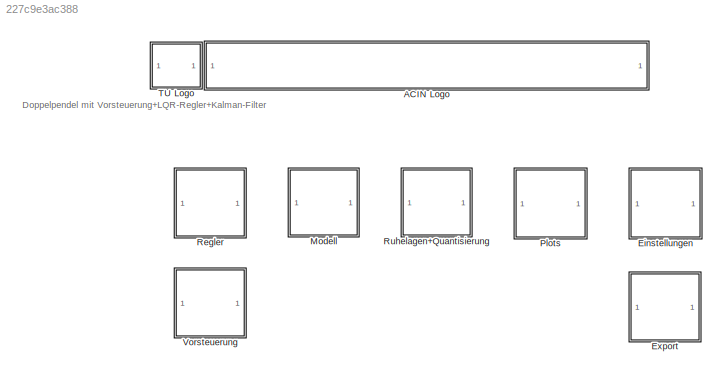
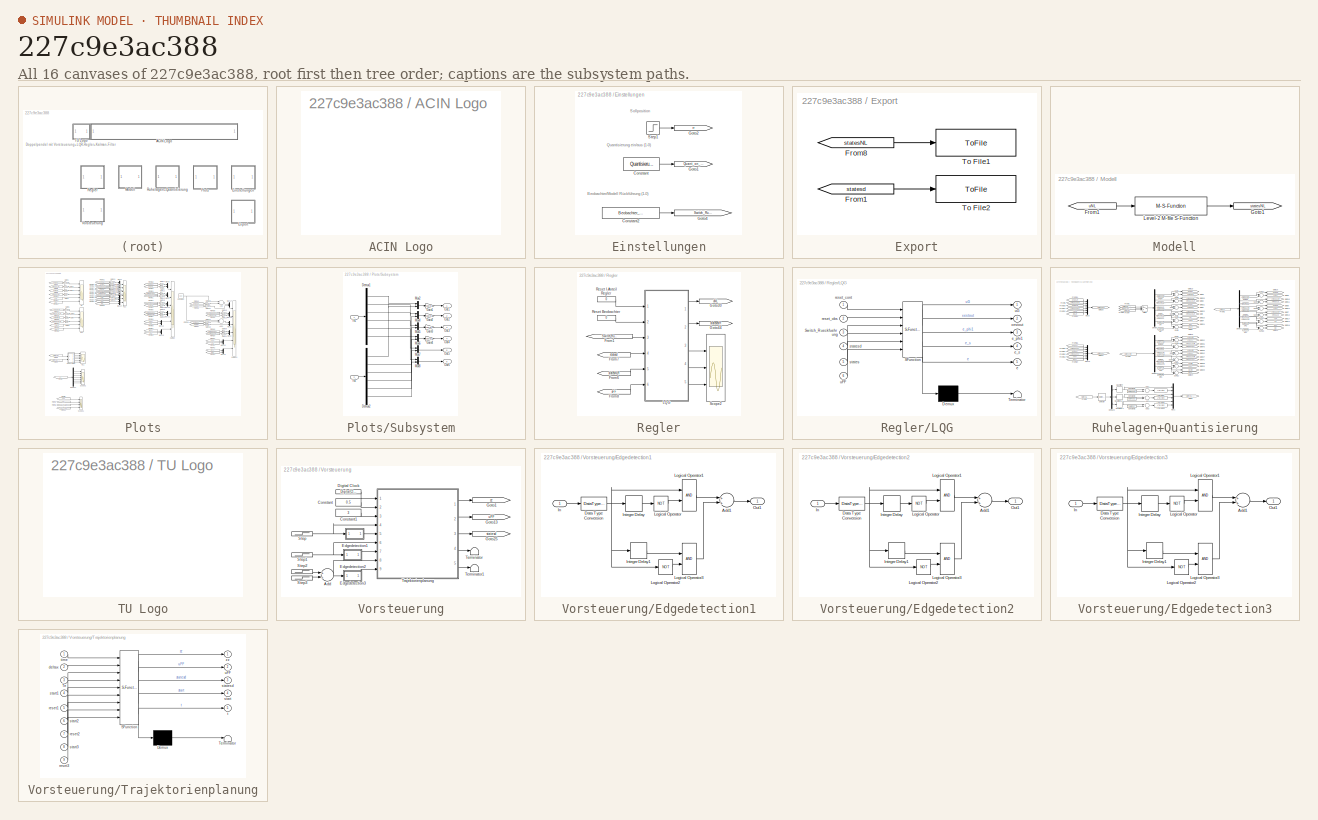
[diagram: thumbnail index - all 16 canvases of the model, root first then tree order]
MODEL slx_227c9e3ac388
KIND model
CONFIG AbsTol = auto
CONFIG EnableMultiTasking = on
CONFIG FixedStep = auto
CONFIG MaxStep = auto
CONFIG MinStep = auto
CONFIG RelTol = auto
CONFIG SampleTimeConstraint = Unconstrained
CONFIG Solver = ode45
CONFIG SolverName = ode45
CONFIG StartTime = 0.0
CONFIG StopTime = 10
BLOCK [SubSystem] ACIN Logo
  Ports = []
  RequestExecContextInheritance = off
  UserDataPersistent = on
  Variant = off
BLOCK [SubSystem] Einstellungen
  Ports = []
  RequestExecContextInheritance = off
  Variant = off
BLOCK [Constant] Einstellungen/Constant
  Value = Quantisierung
BLOCK [Constant] Einstellungen/Constant2
  Value = Beobachter_Rueckfuehrung
BLOCK [Goto] Einstellungen/Goto1
  GotoTag = Quant_on_off
  TagVisibility = global
BLOCK [Goto] Einstellungen/Goto2
  GotoTag = rr
  TagVisibility = global
BLOCK [Goto] Einstellungen/Goto4
  GotoTag = Switch_Rueckfuehrung
  TagVisibility = global
BLOCK [Step] Einstellungen/Step1
  After = 0.1
  SampleTime = parLQR.Ta
BLOCK [SubSystem] Export
  Ports = []
  RequestExecContextInheritance = off
  Variant = off
BLOCK [From] Export/From1
  CloseFcn = tagdialog Close
  GotoTag = statesd
  TagVisibility = global
BLOCK [From] Export/From8
  CloseFcn = tagdialog Close
  GotoTag = statesNL
  TagVisibility = global
BLOCK [ToFile] Export/To File1
  Filename = statesNL
  MatrixName = data
  Ports = [1]
  SampleTime = parDP.Ta
BLOCK [ToFile] Export/To File2
  Filename = statesd
  MatrixName = data
  Ports = [1]
  SampleTime = parDP.Ta
BLOCK [SubSystem] Modell
  Ports = []
  RequestExecContextInheritance = off
  Variant = off
BLOCK [From] Modell/From1
  CloseFcn = tagdialog Close
  GotoTag = uNL
  TagVisibility = global
BLOCK [Goto] Modell/Goto1
  GotoTag = statesNL
  TagVisibility = global
BLOCK [M-S-Function] Modell/Level-2 M-file S-Function
  FunctionName = Doppelpendel_NL_S_m
  Parameters = parDP.phi10,parDP.omega10,parDP.phi20,parDP.omega20,parDP.s0,parDP.w0,parDP.l1,parDP.l2,parDP.a1,parDP.a2,parDP.m1,parDP.m2,parDP.J1,parDP.J2,parDP.d1,parDP.d2
  Ports = [1, 1]
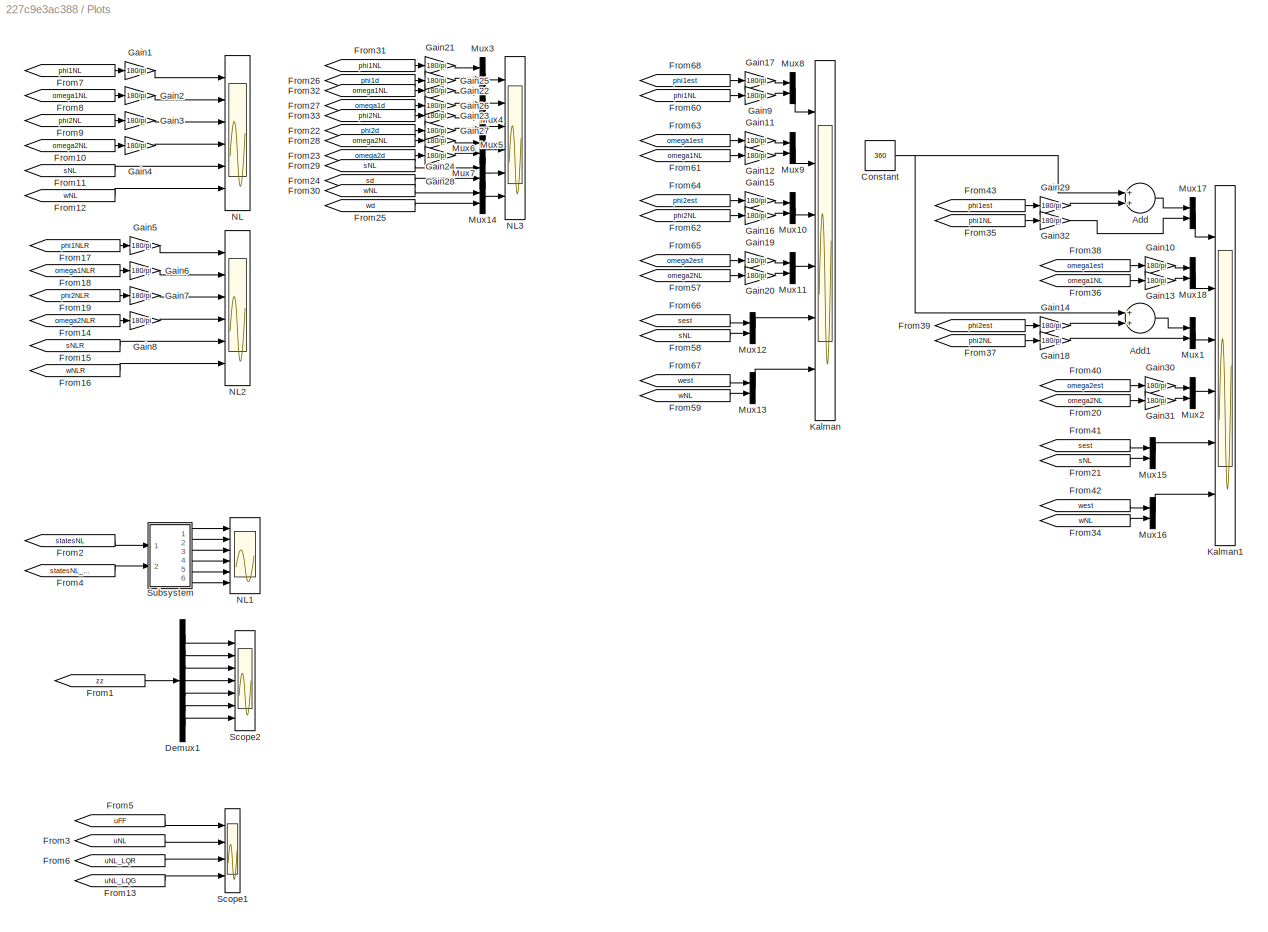
BLOCK [SubSystem] Plots
  Ports = []
  RequestExecContextInheritance = off
  Variant = off
BLOCK [Sum] Plots/Add
  InputSameDT = off
  OutDataTypeStr = Inherit: Inherit via internal rule
  Ports = [2, 1]
  SaturateOnIntegerOverflow = off
BLOCK [Sum] Plots/Add1
  InputSameDT = off
  OutDataTypeStr = Inherit: Inherit via internal rule
  Ports = [2, 1]
  SaturateOnIntegerOverflow = off
BLOCK [Constant] Plots/Constant
  Value = 360
BLOCK [Demux] Plots/Demux1
  DisplayOption = bar
  Outputs = 7
  Ports = [1, 7]
BLOCK [From] Plots/From1
  CloseFcn = tagdialog Close
  GotoTag = zz
  TagVisibility = global
BLOCK [From] Plots/From10
  CloseFcn = tagdialog Close
  GotoTag = omega2NL
  TagVisibility = global
BLOCK [From] Plots/From11
  CloseFcn = tagdialog Close
  GotoTag = sNL
  TagVisibility = global
BLOCK [From] Plots/From12
  CloseFcn = tagdialog Close
  GotoTag = wNL
  TagVisibility = global
BLOCK [From] Plots/From13
  CloseFcn = tagdialog Close
  GotoTag = uNL_LQG
BLOCK [From] Plots/From14
  CloseFcn = tagdialog Close
  GotoTag = omega2NLR
  TagVisibility = global
BLOCK [From] Plots/From15
  CloseFcn = tagdialog Close
  GotoTag = sNLR
  TagVisibility = global
BLOCK [From] Plots/From16
  CloseFcn = tagdialog Close
  GotoTag = wNLR
  TagVisibility = global
BLOCK [From] Plots/From17
  CloseFcn = tagdialog Close
  GotoTag = phi1NLR
  TagVisibility = global
BLOCK [From] Plots/From18
  CloseFcn = tagdialog Close
  GotoTag = omega1NLR
  TagVisibility = global
BLOCK [From] Plots/From19
  CloseFcn = tagdialog Close
  GotoTag = phi2NLR
  TagVisibility = global
BLOCK [From] Plots/From2
  CloseFcn = tagdialog Close
  GotoTag = statesNL
  TagVisibility = global
BLOCK [From] Plots/From20
  CloseFcn = tagdialog Close
  GotoTag = omega2NL
  TagVisibility = global
BLOCK [From] Plots/From21
  CloseFcn = tagdialog Close
  GotoTag = sNL
  TagVisibility = global
BLOCK [From] Plots/From22
  CloseFcn = tagdialog Close
  GotoTag = phi2d
  TagVisibility = global
BLOCK [From] Plots/From23
  CloseFcn = tagdialog Close
  GotoTag = omega2d
  TagVisibility = global
BLOCK [From] Plots/From24
  CloseFcn = tagdialog Close
  GotoTag = sd
  TagVisibility = global
BLOCK [From] Plots/From25
  CloseFcn = tagdialog Close
  GotoTag = wd
  TagVisibility = global
BLOCK [From] Plots/From26
  CloseFcn = tagdialog Close
  GotoTag = phi1d
  TagVisibility = global
BLOCK [From] Plots/From27
  CloseFcn = tagdialog Close
  GotoTag = omega1d
  TagVisibility = global
BLOCK [From] Plots/From28
  CloseFcn = tagdialog Close
  GotoTag = omega2NL
  TagVisibility = global
BLOCK [From] Plots/From29
  CloseFcn = tagdialog Close
  GotoTag = sNL
  TagVisibility = global
BLOCK [From] Plots/From3
  CloseFcn = tagdialog Close
  GotoTag = uNL
  TagVisibility = global
BLOCK [From] Plots/From30
  CloseFcn = tagdialog Close
  GotoTag = wNL
  TagVisibility = global
BLOCK [From] Plots/From31
  CloseFcn = tagdialog Close
  GotoTag = phi1NL
  TagVisibility = global
BLOCK [From] Plots/From32
  CloseFcn = tagdialog Close
  GotoTag = omega1NL
  TagVisibility = global
BLOCK [From] Plots/From33
  CloseFcn = tagdialog Close
  GotoTag = phi2NL
  TagVisibility = global
BLOCK [From] Plots/From34
  CloseFcn = tagdialog Close
  GotoTag = wNL
  TagVisibility = global
BLOCK [From] Plots/From35
  CloseFcn = tagdialog Close
  GotoTag = phi1NL
  TagVisibility = global
BLOCK [From] Plots/From36
  CloseFcn = tagdialog Close
  GotoTag = omega1NL
  TagVisibility = global
BLOCK [From] Plots/From37
  CloseFcn = tagdialog Close
  GotoTag = phi2NL
  TagVisibility = global
BLOCK [From] Plots/From38
  CloseFcn = tagdialog Close
  GotoTag = omega1est
  TagVisibility = global
BLOCK [From] Plots/From39
  CloseFcn = tagdialog Close
  GotoTag = phi2est
  TagVisibility = global
BLOCK [From] Plots/From4
  CloseFcn = tagdialog Close
  GotoTag = statesNL_quant
  TagVisibility = global
BLOCK [From] Plots/From40
  CloseFcn = tagdialog Close
  GotoTag = omega2est
  TagVisibility = global
BLOCK [From] Plots/From41
  CloseFcn = tagdialog Close
  GotoTag = sest
  TagVisibility = global
BLOCK [From] Plots/From42
  CloseFcn = tagdialog Close
  GotoTag = west
  TagVisibility = global
BLOCK [From] Plots/From43
  CloseFcn = tagdialog Close
  GotoTag = phi1est
  TagVisibility = global
BLOCK [From] Plots/From5
  CloseFcn = tagdialog Close
  GotoTag = uFF
  TagVisibility = global
BLOCK [From] Plots/From57
  CloseFcn = tagdialog Close
  GotoTag = omega2NL
  TagVisibility = global
BLOCK [From] Plots/From58
  CloseFcn = tagdialog Close
  GotoTag = sNL
  TagVisibility = global
BLOCK [From] Plots/From59
  CloseFcn = tagdialog Close
  GotoTag = wNL
  TagVisibility = global
BLOCK [From] Plots/From6
  CloseFcn = tagdialog Close
  GotoTag = uNL_LQR
BLOCK [From] Plots/From60
  CloseFcn = tagdialog Close
  GotoTag = phi1NL
  TagVisibility = global
BLOCK [From] Plots/From61
  CloseFcn = tagdialog Close
  GotoTag = omega1NL
  TagVisibility = global
BLOCK [From] Plots/From62
  CloseFcn = tagdialog Close
  GotoTag = phi2NL
  TagVisibility = global
BLOCK [From] Plots/From63
  CloseFcn = tagdialog Close
  GotoTag = omega1est
  TagVisibility = global
BLOCK [From] Plots/From64
  CloseFcn = tagdialog Close
  GotoTag = phi2est
  TagVisibility = global
BLOCK [From] Plots/From65
  CloseFcn = tagdialog Close
  GotoTag = omega2est
  TagVisibility = global
BLOCK [From] Plots/From66
  CloseFcn = tagdialog Close
  GotoTag = sest
  TagVisibility = global
BLOCK [From] Plots/From67
  CloseFcn = tagdialog Close
  GotoTag = west
  TagVisibility = global
BLOCK [From] Plots/From68
  CloseFcn = tagdialog Close
  GotoTag = phi1est
  TagVisibility = global
BLOCK [From] Plots/From7
  CloseFcn = tagdialog Close
  GotoTag = phi1NL
  TagVisibility = global
BLOCK [From] Plots/From8
  CloseFcn = tagdialog Close
  GotoTag = omega1NL
  TagVisibility = global
BLOCK [From] Plots/From9
  CloseFcn = tagdialog Close
  GotoTag = phi2NL
  TagVisibility = global
BLOCK [Gain] Plots/Gain1
  Gain = 180/pi
  OutDataTypeStr = Inherit: Inherit via internal rule
  ParamDataTypeStr = Inherit: Inherit via internal rule
  SaturateOnIntegerOverflow = off
BLOCK [Gain] Plots/Gain10
  Gain = 180/pi
  OutDataTypeStr = Inherit: Inherit via internal rule
  ParamDataTypeStr = Inherit: Inherit via internal rule
  SaturateOnIntegerOverflow = off
BLOCK [Gain] Plots/Gain11
  Gain = 180/pi
  OutDataTypeStr = Inherit: Inherit via internal rule
  ParamDataTypeStr = Inherit: Inherit via internal rule
  SaturateOnIntegerOverflow = off
BLOCK [Gain] Plots/Gain12
  Gain = 180/pi
  OutDataTypeStr = Inherit: Inherit via internal rule
  ParamDataTypeStr = Inherit: Inherit via internal rule
  SaturateOnIntegerOverflow = off
BLOCK [Gain] Plots/Gain13
  Gain = 180/pi
  OutDataTypeStr = Inherit: Inherit via internal rule
  ParamDataTypeStr = Inherit: Inherit via internal rule
  SaturateOnIntegerOverflow = off
BLOCK [Gain] Plots/Gain14
  Gain = 180/pi
  OutDataTypeStr = Inherit: Inherit via internal rule
  ParamDataTypeStr = Inherit: Inherit via internal rule
  SaturateOnIntegerOverflow = off
BLOCK [Gain] Plots/Gain15
  Gain = 180/pi
  OutDataTypeStr = Inherit: Inherit via internal rule
  ParamDataTypeStr = Inherit: Inherit via internal rule
  SaturateOnIntegerOverflow = off
BLOCK [Gain] Plots/Gain16
  Gain = 180/pi
  OutDataTypeStr = Inherit: Inherit via internal rule
  ParamDataTypeStr = Inherit: Inherit via internal rule
  SaturateOnIntegerOverflow = off
BLOCK [Gain] Plots/Gain17
  Gain = 180/pi
  OutDataTypeStr = Inherit: Inherit via internal rule
  ParamDataTypeStr = Inherit: Inherit via internal rule
  SaturateOnIntegerOverflow = off
BLOCK [Gain] Plots/Gain18
  Gain = 180/pi
  OutDataTypeStr = Inherit: Inherit via internal rule
  ParamDataTypeStr = Inherit: Inherit via internal rule
  SaturateOnIntegerOverflow = off
BLOCK [Gain] Plots/Gain19
  Gain = 180/pi
  OutDataTypeStr = Inherit: Inherit via internal rule
  ParamDataTypeStr = Inherit: Inherit via internal rule
  SaturateOnIntegerOverflow = off
BLOCK [Gain] Plots/Gain2
  Gain = 180/pi
  OutDataTypeStr = Inherit: Inherit via internal rule
  ParamDataTypeStr = Inherit: Inherit via internal rule
  SaturateOnIntegerOverflow = off
BLOCK [Gain] Plots/Gain20
  Gain = 180/pi
  OutDataTypeStr = Inherit: Inherit via internal rule
  ParamDataTypeStr = Inherit: Inherit via internal rule
  SaturateOnIntegerOverflow = off
BLOCK [Gain] Plots/Gain21
  Gain = 180/pi
  OutDataTypeStr = Inherit: Inherit via internal rule
  ParamDataTypeStr = Inherit: Inherit via internal rule
  SaturateOnIntegerOverflow = off
BLOCK [Gain] Plots/Gain22
  Gain = 180/pi
  OutDataTypeStr = Inherit: Inherit via internal rule
  ParamDataTypeStr = Inherit: Inherit via internal rule
  SaturateOnIntegerOverflow = off
BLOCK [Gain] Plots/Gain23
  Gain = 180/pi
  OutDataTypeStr = Inherit: Inherit via internal rule
  ParamDataTypeStr = Inherit: Inherit via internal rule
  SaturateOnIntegerOverflow = off
BLOCK [Gain] Plots/Gain24
  Gain = 180/pi
  OutDataTypeStr = Inherit: Inherit via internal rule
  ParamDataTypeStr = Inherit: Inherit via internal rule
  SaturateOnIntegerOverflow = off
BLOCK [Gain] Plots/Gain25
  Gain = 180/pi
  OutDataTypeStr = Inherit: Inherit via internal rule
  ParamDataTypeStr = Inherit: Inherit via internal rule
  SaturateOnIntegerOverflow = off
BLOCK [Gain] Plots/Gain26
  Gain = 180/pi
  OutDataTypeStr = Inherit: Inherit via internal rule
  ParamDataTypeStr = Inherit: Inherit via internal rule
  SaturateOnIntegerOverflow = off
BLOCK [Gain] Plots/Gain27
  Gain = 180/pi
  OutDataTypeStr = Inherit: Inherit via internal rule
  ParamDataTypeStr = Inherit: Inherit via internal rule
  SaturateOnIntegerOverflow = off
BLOCK [Gain] Plots/Gain28
  Gain = 180/pi
  OutDataTypeStr = Inherit: Inherit via internal rule
  ParamDataTypeStr = Inherit: Inherit via internal rule
  SaturateOnIntegerOverflow = off
BLOCK [Gain] Plots/Gain29
  Gain = 180/pi
  OutDataTypeStr = Inherit: Inherit via internal rule
  ParamDataTypeStr = Inherit: Inherit via internal rule
  SaturateOnIntegerOverflow = off
BLOCK [Gain] Plots/Gain3
  Gain = 180/pi
  OutDataTypeStr = Inherit: Inherit via internal rule
  ParamDataTypeStr = Inherit: Inherit via internal rule
  SaturateOnIntegerOverflow = off
BLOCK [Gain] Plots/Gain30
  Gain = 180/pi
  OutDataTypeStr = Inherit: Inherit via internal rule
  ParamDataTypeStr = Inherit: Inherit via internal rule
  SaturateOnIntegerOverflow = off
BLOCK [Gain] Plots/Gain31
  Gain = 180/pi
  OutDataTypeStr = Inherit: Inherit via internal rule
  ParamDataTypeStr = Inherit: Inherit via internal rule
  SaturateOnIntegerOverflow = off
BLOCK [Gain] Plots/Gain32
  Gain = 180/pi
  OutDataTypeStr = Inherit: Inherit via internal rule
  ParamDataTypeStr = Inherit: Inherit via internal rule
  SaturateOnIntegerOverflow = off
BLOCK [Gain] Plots/Gain4
  Gain = 180/pi
  OutDataTypeStr = Inherit: Inherit via internal rule
  ParamDataTypeStr = Inherit: Inherit via internal rule
  SaturateOnIntegerOverflow = off
BLOCK [Gain] Plots/Gain5
  Gain = 180/pi
  OutDataTypeStr = Inherit: Inherit via internal rule
  ParamDataTypeStr = Inherit: Inherit via internal rule
  SaturateOnIntegerOverflow = off
BLOCK [Gain] Plots/Gain6
  Gain = 180/pi
  OutDataTypeStr = Inherit: Inherit via internal rule
  ParamDataTypeStr = Inherit: Inherit via internal rule
  SaturateOnIntegerOverflow = off
BLOCK [Gain] Plots/Gain7
  Gain = 180/pi
  OutDataTypeStr = Inherit: Inherit via internal rule
  ParamDataTypeStr = Inherit: Inherit via internal rule
  SaturateOnIntegerOverflow = off
BLOCK [Gain] Plots/Gain8
  Gain = 180/pi
  OutDataTypeStr = Inherit: Inherit via internal rule
  ParamDataTypeStr = Inherit: Inherit via internal rule
  SaturateOnIntegerOverflow = off
BLOCK [Gain] Plots/Gain9
  Gain = 180/pi
  OutDataTypeStr = Inherit: Inherit via internal rule
  ParamDataTypeStr = Inherit: Inherit via internal rule
  SaturateOnIntegerOverflow = off
BLOCK [Scope] Plots/Kalman
  NumInputPorts = 6
  Ports = [6]
  ScopeSpecificationString = Simulink.scopes.TimeScopeBlockCfg('CurrentConfiguration', extmgr.ConfigurationSet(extmgr.Configuration('Core','General UI',true,'FigureColor',[0.156862745098039 0.156862745098039 0.156862745098039]),extmgr.Configuration('Core','Source UI',true),extmgr.Configuration('Sources','WiredSimulink',true,'DataLoggingVariableName','ScopeData6','DataLoggingSaveFormat','StructureWithTime','DataLoggingDecimati...<+8784ch>
BLOCK [Scope] Plots/Kalman1
  NumInputPorts = 6
  Ports = [6]
  ScopeSpecificationString = Simulink.scopes.TimeScopeBlockCfg('CurrentConfiguration', extmgr.ConfigurationSet(extmgr.Configuration('Core','General UI',true,'FigureColor',[0.156862745098039 0.156862745098039 0.156862745098039]),extmgr.Configuration('Core','Source UI',true),extmgr.Configuration('Sources','WiredSimulink',true,'DataLoggingVariableName','ScopeData1','DataLoggingSaveFormat','StructureWithTime','DataLoggingDecimati...<+8777ch>
BLOCK [Mux] Plots/Mux1
  DisplayOption = bar
  Inputs = 2
  Ports = [2, 1]
BLOCK [Mux] Plots/Mux10
  DisplayOption = bar
  Inputs = 2
  Ports = [2, 1]
BLOCK [Mux] Plots/Mux11
  DisplayOption = bar
  Inputs = 2
  Ports = [2, 1]
BLOCK [Mux] Plots/Mux12
  DisplayOption = bar
  Inputs = 2
  Ports = [2, 1]
BLOCK [Mux] Plots/Mux13
  DisplayOption = bar
  Inputs = 2
  Ports = [2, 1]
BLOCK [Mux] Plots/Mux14
  DisplayOption = bar
  Inputs = 2
  Ports = [2, 1]
BLOCK [Mux] Plots/Mux15
  DisplayOption = bar
  Inputs = 2
  Ports = [2, 1]
BLOCK [Mux] Plots/Mux16
  DisplayOption = bar
  Inputs = 2
  Ports = [2, 1]
BLOCK [Mux] Plots/Mux17
  DisplayOption = bar
  Inputs = 2
  Ports = [2, 1]
BLOCK [Mux] Plots/Mux18
  DisplayOption = bar
  Inputs = 2
  Ports = [2, 1]
BLOCK [Mux] Plots/Mux2
  DisplayOption = bar
  Inputs = 2
  Ports = [2, 1]
BLOCK [Mux] Plots/Mux3
  DisplayOption = bar
  Inputs = 2
  Ports = [2, 1]
BLOCK [Mux] Plots/Mux4
  DisplayOption = bar
  Inputs = 2
  Ports = [2, 1]
BLOCK [Mux] Plots/Mux5
  DisplayOption = bar
  Inputs = 2
  Ports = [2, 1]
BLOCK [Mux] Plots/Mux6
  DisplayOption = bar
  Inputs = 2
  Ports = [2, 1]
BLOCK [Mux] Plots/Mux7
  DisplayOption = bar
  Inputs = 2
  Ports = [2, 1]
BLOCK [Mux] Plots/Mux8
  DisplayOption = bar
  Inputs = 2
  Ports = [2, 1]
BLOCK [Mux] Plots/Mux9
  DisplayOption = bar
  Inputs = 2
  Ports = [2, 1]
BLOCK [Scope] Plots/NL
  NumInputPorts = 6
  Ports = [6]
  ScopeSpecificationString = C++SS(StrPVP('Open','off'),StrPVP('TimeRange','auto'),StrPVP('TickLabels','OneTimeTick'),StrPVP('ShowLegends','off'),StrPVP('LimitDataPoints','off'),StrPVP('MaxDataPoints','5000'),StrPVP('SaveToWorkspace','off'),StrPVP('SaveName','ScopeData2'),StrPVP('YMin','-50~-20000~-25~-40000~-100~-10000'),StrPVP('YMax','125~20000~150~40000~1000~80000'),StrPVP('BlockParamSampleInput','off'),StrPVP('BlockParamS...<+710ch>
BLOCK [Scope] Plots/NL1
  NumInputPorts = 6
  Ports = [6]
  ScopeSpecificationString = C++SS(StrPVP('Open','off'),StrPVP('TimeRange','auto'),StrPVP('TickLabels','OneTimeTick'),StrPVP('ShowLegends','off'),StrPVP('LimitDataPoints','off'),StrPVP('MaxDataPoints','5000'),StrPVP('SaveToWorkspace','off'),StrPVP('SaveName','ScopeData1'),StrPVP('YMin','-50~-20000~-50~-30000~-100~-5000'),StrPVP('YMax','125~20000~150~35000~700~55000'),StrPVP('BlockParamSampleInput','off'),StrPVP('BlockParamSam...<+707ch>
BLOCK [Scope] Plots/NL2
  NumInputPorts = 6
  Ports = [6]
  ScopeSpecificationString = C++SS(StrPVP('Open','off'),StrPVP('TimeRange','auto'),StrPVP('TickLabels','OneTimeTick'),StrPVP('ShowLegends','off'),StrPVP('LimitDataPoints','off'),StrPVP('MaxDataPoints','5000'),StrPVP('SaveToWorkspace','off'),StrPVP('SaveName','ScopeData5'),StrPVP('YMin','-3.5~-7.5~-5~-10~0~0'),StrPVP('YMax','2.5~12.5~4~17.5~0.35~0.35'),StrPVP('BlockParamSampleInput','off'),StrPVP('BlockParamSampleTime','-1'),S...<+691ch>
BLOCK [Scope] Plots/NL3
  NumInputPorts = 6
  Ports = [6]
  ScopeSpecificationString = C++SS(StrPVP('Open','off'),StrPVP('TimeRange','6               '),StrPVP('TickLabels','OneTimeTick'),StrPVP('ShowLegends','off'),StrPVP('LimitDataPoints','off'),StrPVP('MaxDataPoints','5000'),StrPVP('SaveToWorkspace','off'),StrPVP('SaveName','ScopeData8'),StrPVP('YMin','178~-12.5~179.75~-1~-0.02~-0.1'),StrPVP('YMax','181.25~5~182.25~9~0.0075~0.1'),StrPVP('BlockParamSampleInput','off'),StrPVP('Bloc...<+720ch>
BLOCK [Scope] Plots/Scope1
  NumInputPorts = 4
  Ports = [4]
  ScopeSpecificationString = C++SS(StrPVP('Open','off'),StrPVP('TimeRange','6'),StrPVP('TickLabels','OneTimeTick'),StrPVP('ShowLegends','off'),StrPVP('LimitDataPoints','off'),StrPVP('MaxDataPoints','5000'),StrPVP('SaveToWorkspace','off'),StrPVP('SaveName','ScopeData4'),StrPVP('YMin','-0.4~-0.45~-0.35~-0.45'),StrPVP('YMax','0.4~0.45~0.4~0.45'),StrPVP('BlockParamSampleInput','off'),StrPVP('BlockParamSampleTime','-1'),StrPVP('Zo...<+686ch>
BLOCK [Scope] Plots/Scope2
  NumInputPorts = 7
  Ports = [7]
  ScopeSpecificationString = C++SS(StrPVP('Open','off'),StrPVP('TimeRange','6'),StrPVP('TickLabels','OneTimeTick'),StrPVP('ShowLegends','off'),StrPVP('LimitDataPoints','off'),StrPVP('MaxDataPoints','5000'),StrPVP('SaveToWorkspace','off'),StrPVP('SaveName','ScopeData9'),StrPVP('YMin','0~-0.0001~-0.001~-0.003~-0.01~-0.04~-0.2'),StrPVP('YMax','0.0006~0.0006~0.001~0.002~0.01~0.04~0.15'),StrPVP('BlockParamSampleInput','off'),StrPV...<+814ch>
BLOCK [SubSystem] Plots/Subsystem
  Ports = [2, 6]
  RequestExecContextInheritance = off
  Variant = off
BLOCK [Demux] Plots/Subsystem/Demux1
  DisplayOption = bar
  Outputs = 6
  Ports = [1, 6]
BLOCK [Demux] Plots/Subsystem/Demux2
  DisplayOption = bar
  Outputs = 6
  Ports = [1, 6]
BLOCK [Gain] Plots/Subsystem/Gain1
  Gain = 180/pi
  OutDataTypeStr = Inherit: Inherit via internal rule
  ParamDataTypeStr = Inherit: Inherit via internal rule
  SaturateOnIntegerOverflow = off
BLOCK [Gain] Plots/Subsystem/Gain2
  Gain = 180/pi
  OutDataTypeStr = Inherit: Inherit via internal rule
  ParamDataTypeStr = Inherit: Inherit via internal rule
  SaturateOnIntegerOverflow = off
BLOCK [Gain] Plots/Subsystem/Gain3
  Gain = 180/pi
  OutDataTypeStr = Inherit: Inherit via internal rule
  ParamDataTypeStr = Inherit: Inherit via internal rule
  SaturateOnIntegerOverflow = off
BLOCK [Gain] Plots/Subsystem/Gain4
  Gain = 180/pi
  OutDataTypeStr = Inherit: Inherit via internal rule
  ParamDataTypeStr = Inherit: Inherit via internal rule
  SaturateOnIntegerOverflow = off
BLOCK [Inport] Plots/Subsystem/In1
  IconDisplay = Port number
BLOCK [Inport] Plots/Subsystem/In2
  IconDisplay = Port number
  Port = 2
BLOCK [Mux] Plots/Subsystem/Mux2
  DisplayOption = bar
  Inputs = 2
  Ports = [2, 1]
BLOCK [Mux] Plots/Subsystem/Mux4
  DisplayOption = bar
  Inputs = 2
  Ports = [2, 1]
BLOCK [Mux] Plots/Subsystem/Mux5
  DisplayOption = bar
  Inputs = 2
  Ports = [2, 1]
BLOCK [Mux] Plots/Subsystem/Mux6
  DisplayOption = bar
  Inputs = 2
  Ports = [2, 1]
BLOCK [Mux] Plots/Subsystem/Mux7
  DisplayOption = bar
  Inputs = 2
  Ports = [2, 1]
BLOCK [Mux] Plots/Subsystem/Mux8
  DisplayOption = bar
  Inputs = 2
  Ports = [2, 1]
BLOCK [Outport] Plots/Subsystem/Out1
  IconDisplay = Port number
BLOCK [Outport] Plots/Subsystem/Out2
  IconDisplay = Port number
  Port = 2
BLOCK [Outport] Plots/Subsystem/Out3
  IconDisplay = Port number
  Port = 3
BLOCK [Outport] Plots/Subsystem/Out4
  IconDisplay = Port number
  Port = 4
BLOCK [Outport] Plots/Subsystem/Out5
  IconDisplay = Port number
  Port = 5
BLOCK [Outport] Plots/Subsystem/Out6
  IconDisplay = Port number
  Port = 6
BLOCK [SubSystem] Regler
  Ports = []
  RequestExecContextInheritance = off
  Variant = off
BLOCK [From] Regler/From1
  CloseFcn = tagdialog Close
  GotoTag = Switch_Rueckfuehrung
  TagVisibility = global
BLOCK [From] Regler/From6
  CloseFcn = tagdialog Close
  GotoTag = statesNLR
  TagVisibility = global
BLOCK [From] Regler/From7
  CloseFcn = tagdialog Close
  GotoTag = statesd
  TagVisibility = global
BLOCK [From] Regler/From8
  CloseFcn = tagdialog Close
  GotoTag = uFF
  TagVisibility = global
BLOCK [Goto] Regler/Goto30
  GotoTag = uNL
  TagVisibility = global
BLOCK [Goto] Regler/Goto44
  GotoTag = statesestR
  TagVisibility = global
BLOCK [SubSystem] Regler/LQG
  ErrorFcn = Stateflow.Translate.translate
  PermitHierarchicalResolution = ExplicitOnly
  Ports = [6, 5]
  RequestExecContextInheritance = off
  SFBlockType = MATLAB Function
  TreatAsAtomicUnit = on
  Variant = off
BLOCK [Demux] Regler/LQG/ Demux 
  Outputs = 1
  Ports = [1, 1]
BLOCK [S-Function] Regler/LQG/ SFunction 
  EnableBusSupport = on
  FunctionName = sf_sfun
  Parameters = parKAL,parLQR
  PortCounts = [6 6]
  Ports = [6, 6]
  SFcnIsStateOwnerBlock = off
  SFunctionDeploymentMode = off
  Tag = Stateflow S-Function Doppelpendel_LQG 4
BLOCK [Terminator] Regler/LQG/ Terminator 
BLOCK [Inport] Regler/LQG/Switch_Rueckfuehrung
  IconDisplay = Port number
  Port = 3
BLOCK [Outport] Regler/LQG/e
  IconDisplay = Port number
  Port = 5
BLOCK [Outport] Regler/LQG/e_phi1
  IconDisplay = Port number
  Port = 3
BLOCK [Outport] Regler/LQG/e_s
  IconDisplay = Port number
  Port = 4
BLOCK [Inport] Regler/LQG/reset_cont
  IconDisplay = Port number
BLOCK [Inport] Regler/LQG/reset_obs
  IconDisplay = Port number
  Port = 2
BLOCK [Inport] Regler/LQG/states
  IconDisplay = Port number
  Port = 5
BLOCK [Inport] Regler/LQG/statesd
  IconDisplay = Port number
  Port = 4
BLOCK [Inport] Regler/LQG/uFF
  IconDisplay = Port number
  Port = 6
BLOCK [Outport] Regler/LQG/uG
  IconDisplay = Port number
BLOCK [Outport] Regler/LQG/xestout
  IconDisplay = Port number
  Port = 2
BLOCK [Constant] Regler/Reset Beobachter
  Value = 0
BLOCK [Constant] Regler/Reset I-Anteil Regler
  Value = 0
BLOCK [Scope] Regler/Scope2
  NumInputPorts = 3
  Ports = [3]
  ScopeSpecificationString = C++SS(StrPVP('Open','off'),StrPVP('TimeRange','auto'),StrPVP('TickLabels','OneTimeTick'),StrPVP('ShowLegends','off'),StrPVP('LimitDataPoints','off'),StrPVP('MaxDataPoints','5000'),StrPVP('SaveToWorkspace','off'),StrPVP('SaveName','ScopeData'),StrPVP('YMin','-0.012~-0.01~-0.009'),StrPVP('YMax','0.012~0.01~0.009'),StrPVP('BlockParamSampleInput','off'),StrPVP('BlockParamSampleTime','-1'),StrPVP('Zoom...<+660ch>
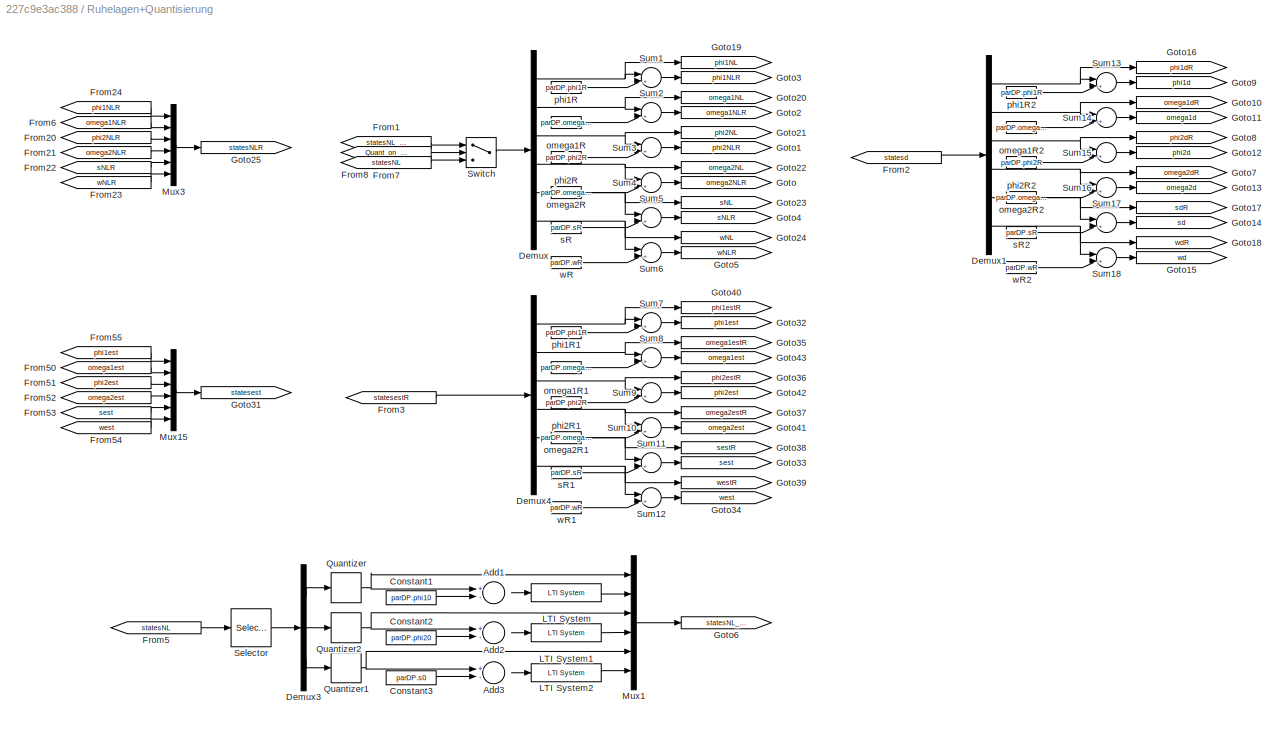
BLOCK [SubSystem] Ruhelagen+Quantisierung
  Ports = []
  RequestExecContextInheritance = off
  Variant = off
BLOCK [Sum] Ruhelagen+Quantisierung/Add1
  InputSameDT = off
  Inputs = +-
  OutDataTypeStr = Inherit: Inherit via internal rule
  Ports = [2, 1]
  SaturateOnIntegerOverflow = off
BLOCK [Sum] Ruhelagen+Quantisierung/Add2
  InputSameDT = off
  Inputs = +-
  OutDataTypeStr = Inherit: Inherit via internal rule
  Ports = [2, 1]
  SaturateOnIntegerOverflow = off
BLOCK [Sum] Ruhelagen+Quantisierung/Add3
  InputSameDT = off
  Inputs = +-
  OutDataTypeStr = Inherit: Inherit via internal rule
  Ports = [2, 1]
  SaturateOnIntegerOverflow = off
BLOCK [Constant] Ruhelagen+Quantisierung/Constant1
  Value = parDP.phi10
BLOCK [Constant] Ruhelagen+Quantisierung/Constant2
  Value = parDP.phi20
BLOCK [Constant] Ruhelagen+Quantisierung/Constant3
  Value = parDP.s0
BLOCK [Demux] Ruhelagen+Quantisierung/Demux
  DisplayOption = bar
  Outputs = 6
  Ports = [1, 6]
BLOCK [Demux] Ruhelagen+Quantisierung/Demux1
  DisplayOption = bar
  Outputs = 6
  Ports = [1, 6]
BLOCK [Demux] Ruhelagen+Quantisierung/Demux3
  DisplayOption = bar
  Outputs = 3
  Ports = [1, 3]
BLOCK [Demux] Ruhelagen+Quantisierung/Demux4
  DisplayOption = bar
  Outputs = 6
  Ports = [1, 6]
BLOCK [From] Ruhelagen+Quantisierung/From1
  CloseFcn = tagdialog Close
  GotoTag = statesNL_quant
  TagVisibility = global
BLOCK [From] Ruhelagen+Quantisierung/From2
  CloseFcn = tagdialog Close
  GotoTag = statesd
  TagVisibility = global
BLOCK [From] Ruhelagen+Quantisierung/From20
  CloseFcn = tagdialog Close
  GotoTag = phi2NLR
  TagVisibility = global
BLOCK [From] Ruhelagen+Quantisierung/From21
  CloseFcn = tagdialog Close
  GotoTag = omega2NLR
  TagVisibility = global
BLOCK [From] Ruhelagen+Quantisierung/From22
  CloseFcn = tagdialog Close
  GotoTag = sNLR
  TagVisibility = global
BLOCK [From] Ruhelagen+Quantisierung/From23
  CloseFcn = tagdialog Close
  GotoTag = wNLR
  TagVisibility = global
BLOCK [From] Ruhelagen+Quantisierung/From24
  CloseFcn = tagdialog Close
  GotoTag = phi1NLR
  TagVisibility = global
BLOCK [From] Ruhelagen+Quantisierung/From3
  CloseFcn = tagdialog Close
  GotoTag = statesestR
  TagVisibility = global
BLOCK [From] Ruhelagen+Quantisierung/From5
  CloseFcn = tagdialog Close
  GotoTag = statesNL
  TagVisibility = global
BLOCK [From] Ruhelagen+Quantisierung/From50
  CloseFcn = tagdialog Close
  GotoTag = omega1est
  TagVisibility = global
BLOCK [From] Ruhelagen+Quantisierung/From51
  CloseFcn = tagdialog Close
  GotoTag = phi2est
  TagVisibility = global
BLOCK [From] Ruhelagen+Quantisierung/From52
  CloseFcn = tagdialog Close
  GotoTag = omega2est
  TagVisibility = global
BLOCK [From] Ruhelagen+Quantisierung/From53
  CloseFcn = tagdialog Close
  GotoTag = sest
  TagVisibility = global
BLOCK [From] Ruhelagen+Quantisierung/From54
  CloseFcn = tagdialog Close
  GotoTag = west
  TagVisibility = global
BLOCK [From] Ruhelagen+Quantisierung/From55
  CloseFcn = tagdialog Close
  GotoTag = phi1est
  TagVisibility = global
BLOCK [From] Ruhelagen+Quantisierung/From6
  CloseFcn = tagdialog Close
  GotoTag = omega1NLR
  TagVisibility = global
BLOCK [From] Ruhelagen+Quantisierung/From7
  CloseFcn = tagdialog Close
  GotoTag = Quant_on_off
  TagVisibility = global
BLOCK [From] Ruhelagen+Quantisierung/From8
  CloseFcn = tagdialog Close
  GotoTag = statesNL
  TagVisibility = global
BLOCK [Goto] Ruhelagen+Quantisierung/Goto
  GotoTag = omega2NLR
  TagVisibility = global
BLOCK [Goto] Ruhelagen+Quantisierung/Goto1
  GotoTag = phi2NLR
  TagVisibility = global
BLOCK [Goto] Ruhelagen+Quantisierung/Goto10
  GotoTag = omega1dR
  TagVisibility = global
BLOCK [Goto] Ruhelagen+Quantisierung/Goto11
  GotoTag = omega1d
  TagVisibility = global
BLOCK [Goto] Ruhelagen+Quantisierung/Goto12
  GotoTag = phi2d
  TagVisibility = global
BLOCK [Goto] Ruhelagen+Quantisierung/Goto13
  GotoTag = omega2d
  TagVisibility = global
BLOCK [Goto] Ruhelagen+Quantisierung/Goto14
  GotoTag = sd
  TagVisibility = global
BLOCK [Goto] Ruhelagen+Quantisierung/Goto15
  GotoTag = wd
  TagVisibility = global
BLOCK [Goto] Ruhelagen+Quantisierung/Goto16
  GotoTag = phi1dR
  TagVisibility = global
BLOCK [Goto] Ruhelagen+Quantisierung/Goto17
  GotoTag = sdR
  TagVisibility = global
BLOCK [Goto] Ruhelagen+Quantisierung/Goto18
  GotoTag = wdR
  TagVisibility = global
BLOCK [Goto] Ruhelagen+Quantisierung/Goto19
  GotoTag = phi1NL
  TagVisibility = global
BLOCK [Goto] Ruhelagen+Quantisierung/Goto2
  GotoTag = omega1NLR
  TagVisibility = global
BLOCK [Goto] Ruhelagen+Quantisierung/Goto20
  GotoTag = omega1NL
  TagVisibility = global
BLOCK [Goto] Ruhelagen+Quantisierung/Goto21
  GotoTag = phi2NL
  TagVisibility = global
BLOCK [Goto] Ruhelagen+Quantisierung/Goto22
  GotoTag = omega2NL
  TagVisibility = global
BLOCK [Goto] Ruhelagen+Quantisierung/Goto23
  GotoTag = sNL
  TagVisibility = global
BLOCK [Goto] Ruhelagen+Quantisierung/Goto24
  GotoTag = wNL
  TagVisibility = global
BLOCK [Goto] Ruhelagen+Quantisierung/Goto25
  GotoTag = statesNLR
  TagVisibility = global
BLOCK [Goto] Ruhelagen+Quantisierung/Goto3
  GotoTag = phi1NLR
  TagVisibility = global
BLOCK [Goto] Ruhelagen+Quantisierung/Goto31
  GotoTag = statesest
  TagVisibility = global
BLOCK [Goto] Ruhelagen+Quantisierung/Goto32
  GotoTag = phi1est
  TagVisibility = global
BLOCK [Goto] Ruhelagen+Quantisierung/Goto33
  GotoTag = sest
  TagVisibility = global
BLOCK [Goto] Ruhelagen+Quantisierung/Goto34
  GotoTag = west
  TagVisibility = global
BLOCK [Goto] Ruhelagen+Quantisierung/Goto35
  GotoTag = omega1estR
  TagVisibility = global
BLOCK [Goto] Ruhelagen+Quantisierung/Goto36
  GotoTag = phi2estR
  TagVisibility = global
BLOCK [Goto] Ruhelagen+Quantisierung/Goto37
  GotoTag = omega2estR
  TagVisibility = global
BLOCK [Goto] Ruhelagen+Quantisierung/Goto38
  GotoTag = sestR
  TagVisibility = global
BLOCK [Goto] Ruhelagen+Quantisierung/Goto39
  GotoTag = westR
  TagVisibility = global
BLOCK [Goto] Ruhelagen+Quantisierung/Goto4
  GotoTag = sNLR
  TagVisibility = global
BLOCK [Goto] Ruhelagen+Quantisierung/Goto40
  GotoTag = phi1estR
  TagVisibility = global
BLOCK [Goto] Ruhelagen+Quantisierung/Goto41
  GotoTag = omega2est
  TagVisibility = global
BLOCK [Goto] Ruhelagen+Quantisierung/Goto42
  GotoTag = phi2est
  TagVisibility = global
BLOCK [Goto] Ruhelagen+Quantisierung/Goto43
  GotoTag = omega1est
  TagVisibility = global
BLOCK [Goto] Ruhelagen+Quantisierung/Goto5
  GotoTag = wNLR
  TagVisibility = global
BLOCK [Goto] Ruhelagen+Quantisierung/Goto6
  GotoTag = statesNL_quant
  TagVisibility = global
BLOCK [Goto] Ruhelagen+Quantisierung/Goto7
  GotoTag = omega2dR
  TagVisibility = global
BLOCK [Goto] Ruhelagen+Quantisierung/Goto8
  GotoTag = phi2dR
  TagVisibility = global
BLOCK [Goto] Ruhelagen+Quantisierung/Goto9
  GotoTag = phi1d
  TagVisibility = global
BLOCK [Reference] Ruhelagen+Quantisierung/LTI System  REF=cstblocks/LTI System
  Ports = [1, 1]
  SourceBlock = cstblocks/LTI System
  SourceType = LTI Block
BLOCK [Reference] Ruhelagen+Quantisierung/LTI System1  REF=cstblocks/LTI System
  Ports = [1, 1]
  SourceBlock = cstblocks/LTI System
  SourceType = LTI Block
BLOCK [Reference] Ruhelagen+Quantisierung/LTI System2  REF=cstblocks/LTI System
  Ports = [1, 1]
  SourceBlock = cstblocks/LTI System
  SourceType = LTI Block
BLOCK [Mux] Ruhelagen+Quantisierung/Mux1
  DisplayOption = bar
  Inputs = 6
  Ports = [6, 1]
BLOCK [Mux] Ruhelagen+Quantisierung/Mux15
  DisplayOption = bar
  Inputs = 6
  Ports = [6, 1]
BLOCK [Mux] Ruhelagen+Quantisierung/Mux3
  DisplayOption = bar
  Inputs = 6
  Ports = [6, 1]
BLOCK [Quantizer] Ruhelagen+Quantisierung/Quantizer
  QuantizationInterval = Phiquantisierung
  SampleTime = parLQR.Ta
BLOCK [Quantizer] Ruhelagen+Quantisierung/Quantizer1
  QuantizationInterval = Wegquantisierung
  SampleTime = parLQR.Ta
BLOCK [Quantizer] Ruhelagen+Quantisierung/Quantizer2
  QuantizationInterval = Phiquantisierung
  SampleTime = parLQR.Ta
BLOCK [Selector] Ruhelagen+Quantisierung/Selector
  IndexOptions = Index vector (dialog)
  Indices = [1 3 5]
  InputPortWidth = 6
  OutputSizes = 1
  Ports = [1, 1]
BLOCK [Sum] Ruhelagen+Quantisierung/Sum1
  IconShape = round
  InputSameDT = off
  Inputs = |+-|
  OutDataTypeStr = Inherit: Inherit via internal rule
  Ports = [2, 1]
  SaturateOnIntegerOverflow = off
BLOCK [Sum] Ruhelagen+Quantisierung/Sum10
  IconShape = round
  InputSameDT = off
  Inputs = |+-|
  OutDataTypeStr = Inherit: Inherit via internal rule
  Ports = [2, 1]
  SaturateOnIntegerOverflow = off
BLOCK [Sum] Ruhelagen+Quantisierung/Sum11
  IconShape = round
  InputSameDT = off
  Inputs = |+-|
  OutDataTypeStr = Inherit: Inherit via internal rule
  Ports = [2, 1]
  SaturateOnIntegerOverflow = off
BLOCK [Sum] Ruhelagen+Quantisierung/Sum12
  IconShape = round
  InputSameDT = off
  Inputs = |+-|
  OutDataTypeStr = Inherit: Inherit via internal rule
  Ports = [2, 1]
  SaturateOnIntegerOverflow = off
BLOCK [Sum] Ruhelagen+Quantisierung/Sum13
  IconShape = round
  InputSameDT = off
  Inputs = |+-|
  OutDataTypeStr = Inherit: Inherit via internal rule
  Ports = [2, 1]
  SaturateOnIntegerOverflow = off
BLOCK [Sum] Ruhelagen+Quantisierung/Sum14
  IconShape = round
  InputSameDT = off
  Inputs = |+-|
  OutDataTypeStr = Inherit: Inherit via internal rule
  Ports = [2, 1]
  SaturateOnIntegerOverflow = off
BLOCK [Sum] Ruhelagen+Quantisierung/Sum15
  IconShape = round
  InputSameDT = off
  Inputs = |+-|
  OutDataTypeStr = Inherit: Inherit via internal rule
  Ports = [2, 1]
  SaturateOnIntegerOverflow = off
BLOCK [Sum] Ruhelagen+Quantisierung/Sum16
  IconShape = round
  InputSameDT = off
  Inputs = |+-|
  OutDataTypeStr = Inherit: Inherit via internal rule
  Ports = [2, 1]
  SaturateOnIntegerOverflow = off
BLOCK [Sum] Ruhelagen+Quantisierung/Sum17
  IconShape = round
  InputSameDT = off
  Inputs = |+-|
  OutDataTypeStr = Inherit: Inherit via internal rule
  Ports = [2, 1]
  SaturateOnIntegerOverflow = off
BLOCK [Sum] Ruhelagen+Quantisierung/Sum18
  IconShape = round
  InputSameDT = off
  Inputs = |+-|
  OutDataTypeStr = Inherit: Inherit via internal rule
  Ports = [2, 1]
  SaturateOnIntegerOverflow = off
BLOCK [Sum] Ruhelagen+Quantisierung/Sum2
  IconShape = round
  InputSameDT = off
  Inputs = |+-|
  OutDataTypeStr = Inherit: Inherit via internal rule
  Ports = [2, 1]
  SaturateOnIntegerOverflow = off
BLOCK [Sum] Ruhelagen+Quantisierung/Sum3
  IconShape = round
  InputSameDT = off
  Inputs = |+-|
  OutDataTypeStr = Inherit: Inherit via internal rule
  Ports = [2, 1]
  SaturateOnIntegerOverflow = off
BLOCK [Sum] Ruhelagen+Quantisierung/Sum4
  IconShape = round
  InputSameDT = off
  Inputs = |+-|
  OutDataTypeStr = Inherit: Inherit via internal rule
  Ports = [2, 1]
  SaturateOnIntegerOverflow = off
BLOCK [Sum] Ruhelagen+Quantisierung/Sum5
  IconShape = round
  InputSameDT = off
  Inputs = |+-|
  OutDataTypeStr = Inherit: Inherit via internal rule
  Ports = [2, 1]
  SaturateOnIntegerOverflow = off
BLOCK [Sum] Ruhelagen+Quantisierung/Sum6
  IconShape = round
  InputSameDT = off
  Inputs = |+-|
  OutDataTypeStr = Inherit: Inherit via internal rule
  Ports = [2, 1]
  SaturateOnIntegerOverflow = off
BLOCK [Sum] Ruhelagen+Quantisierung/Sum7
  IconShape = round
  InputSameDT = off
  Inputs = |+-|
  OutDataTypeStr = Inherit: Inherit via internal rule
  Ports = [2, 1]
  SaturateOnIntegerOverflow = off
BLOCK [Sum] Ruhelagen+Quantisierung/Sum8
  IconShape = round
  InputSameDT = off
  Inputs = |+-|
  OutDataTypeStr = Inherit: Inherit via internal rule
  Ports = [2, 1]
  SaturateOnIntegerOverflow = off
BLOCK [Sum] Ruhelagen+Quantisierung/Sum9
  IconShape = round
  InputSameDT = off
  Inputs = |+-|
  OutDataTypeStr = Inherit: Inherit via internal rule
  Ports = [2, 1]
  SaturateOnIntegerOverflow = off
BLOCK [Switch] Ruhelagen+Quantisierung/Switch
  InputSameDT = off
  SaturateOnIntegerOverflow = off
  Threshold = 0.5
BLOCK [Constant] Ruhelagen+Quantisierung/omega1R
  Value = parDP.omega1R
BLOCK [Constant] Ruhelagen+Quantisierung/omega1R1
  Value = parDP.omega1R
BLOCK [Constant] Ruhelagen+Quantisierung/omega1R2
  Value = parDP.omega1R
BLOCK [Constant] Ruhelagen+Quantisierung/omega2R
  Value = parDP.omega2R
BLOCK [Constant] Ruhelagen+Quantisierung/omega2R1
  Value = parDP.omega2R
BLOCK [Constant] Ruhelagen+Quantisierung/omega2R2
  Value = parDP.omega2R
BLOCK [Constant] Ruhelagen+Quantisierung/phi1R
  Value = parDP.phi1R
BLOCK [Constant] Ruhelagen+Quantisierung/phi1R1
  Value = parDP.phi1R
BLOCK [Constant] Ruhelagen+Quantisierung/phi1R2
  Value = parDP.phi1R
BLOCK [Constant] Ruhelagen+Quantisierung/phi2R
  Value = parDP.phi2R
BLOCK [Constant] Ruhelagen+Quantisierung/phi2R1
  Value = parDP.phi2R
BLOCK [Constant] Ruhelagen+Quantisierung/phi2R2
  Value = parDP.phi2R
BLOCK [Constant] Ruhelagen+Quantisierung/sR
  Value = parDP.sR
BLOCK [Constant] Ruhelagen+Quantisierung/sR1
  Value = parDP.sR
BLOCK [Constant] Ruhelagen+Quantisierung/sR2
  Value = parDP.sR
BLOCK [Constant] Ruhelagen+Quantisierung/wR
  Value = parDP.wR
BLOCK [Constant] Ruhelagen+Quantisierung/wR1
  Value = parDP.wR
BLOCK [Constant] Ruhelagen+Quantisierung/wR2
  Value = parDP.wR
BLOCK [SubSystem] TU Logo
  Ports = []
  RequestExecContextInheritance = off
  UserDataPersistent = on
  Variant = off
BLOCK [SubSystem] Vorsteuerung
  Ports = []
  RequestExecContextInheritance = off
  Variant = off
BLOCK [Sum] Vorsteuerung/Add
  InputSameDT = off
  OutDataTypeStr = Inherit: Inherit via internal rule
  Ports = [2, 1]
  SaturateOnIntegerOverflow = off
BLOCK [Constant] Vorsteuerung/Constant
  Value = 0.5
BLOCK [Constant] Vorsteuerung/Constant1
  Value = 3
BLOCK [DigitalClock] Vorsteuerung/Digital Clock
  SampleTime = parLQR.Ta
BLOCK [SubSystem] Vorsteuerung/Edgedetection1
  Ports = [1, 1]
  RequestExecContextInheritance = off
  Variant = off
BLOCK [Sum] Vorsteuerung/Edgedetection1/Add1
  InputSameDT = off
  OutDataTypeStr = Inherit: Inherit via internal rule
  Ports = [2, 1]
  SaturateOnIntegerOverflow = off
BLOCK [DataTypeConversion] Vorsteuerung/Edgedetection1/Data Type Conversion
  OutDataTypeStr = boolean
BLOCK [Inport] Vorsteuerung/Edgedetection1/In
  IconDisplay = Port number
BLOCK [Delay] Vorsteuerung/Edgedetection1/Integer Delay
  DelayLength = 1
  InputPortMap = u0
  InputProcessing = Inherited
  Ports = [1, 1]
  SampleTime = parLQR.Ta
BLOCK [Delay] Vorsteuerung/Edgedetection1/Integer Delay1
  DelayLength = 1
  InputPortMap = u0
  InputProcessing = Inherited
  Ports = [1, 1]
  SampleTime = parLQR.Ta
BLOCK [Logic] Vorsteuerung/Edgedetection1/Logical Operator
  Inputs = 1
  Operator = NOT
  Ports = [1, 1]
BLOCK [Logic] Vorsteuerung/Edgedetection1/Logical Operator1
  Ports = [2, 1]
BLOCK [Logic] Vorsteuerung/Edgedetection1/Logical Operator2
  Inputs = 1
  Operator = NOT
  Ports = [1, 1]
BLOCK [Logic] Vorsteuerung/Edgedetection1/Logical Operator3
  Ports = [2, 1]
BLOCK [Outport] Vorsteuerung/Edgedetection1/Out1
  IconDisplay = Port number
BLOCK [SubSystem] Vorsteuerung/Edgedetection2
  Ports = [1, 1]
  RequestExecContextInheritance = off
  Variant = off
BLOCK [Sum] Vorsteuerung/Edgedetection2/Add1
  InputSameDT = off
  OutDataTypeStr = Inherit: Inherit via internal rule
  Ports = [2, 1]
  SaturateOnIntegerOverflow = off
BLOCK [DataTypeConversion] Vorsteuerung/Edgedetection2/Data Type Conversion
  OutDataTypeStr = boolean
BLOCK [Inport] Vorsteuerung/Edgedetection2/In
  IconDisplay = Port number
BLOCK [Delay] Vorsteuerung/Edgedetection2/Integer Delay
  DelayLength = 1
  InputPortMap = u0
  InputProcessing = Inherited
  Ports = [1, 1]
  SampleTime = parLQR.Ta
BLOCK [Delay] Vorsteuerung/Edgedetection2/Integer Delay1
  DelayLength = 1
  InputPortMap = u0
  InputProcessing = Inherited
  Ports = [1, 1]
  SampleTime = parLQR.Ta
BLOCK [Logic] Vorsteuerung/Edgedetection2/Logical Operator
  Inputs = 1
  Operator = NOT
  Ports = [1, 1]
BLOCK [Logic] Vorsteuerung/Edgedetection2/Logical Operator1
  Ports = [2, 1]
BLOCK [Logic] Vorsteuerung/Edgedetection2/Logical Operator2
  Inputs = 1
  Operator = NOT
  Ports = [1, 1]
BLOCK [Logic] Vorsteuerung/Edgedetection2/Logical Operator3
  Ports = [2, 1]
BLOCK [Outport] Vorsteuerung/Edgedetection2/Out1
  IconDisplay = Port number
BLOCK [SubSystem] Vorsteuerung/Edgedetection3
  Ports = [1, 1]
  RequestExecContextInheritance = off
  Variant = off
BLOCK [Sum] Vorsteuerung/Edgedetection3/Add1
  InputSameDT = off
  OutDataTypeStr = Inherit: Inherit via internal rule
  Ports = [2, 1]
  SaturateOnIntegerOverflow = off
BLOCK [DataTypeConversion] Vorsteuerung/Edgedetection3/Data Type Conversion
  OutDataTypeStr = boolean
BLOCK [Inport] Vorsteuerung/Edgedetection3/In
  IconDisplay = Port number
BLOCK [Delay] Vorsteuerung/Edgedetection3/Integer Delay
  DelayLength = 1
  InputPortMap = u0
  InputProcessing = Inherited
  Ports = [1, 1]
  SampleTime = parLQR.Ta
BLOCK [Delay] Vorsteuerung/Edgedetection3/Integer Delay1
  DelayLength = 1
  InputPortMap = u0
  InputProcessing = Inherited
  Ports = [1, 1]
  SampleTime = parLQR.Ta
BLOCK [Logic] Vorsteuerung/Edgedetection3/Logical Operator
  Inputs = 1
  Operator = NOT
  Ports = [1, 1]
BLOCK [Logic] Vorsteuerung/Edgedetection3/Logical Operator1
  Ports = [2, 1]
BLOCK [Logic] Vorsteuerung/Edgedetection3/Logical Operator2
  Inputs = 1
  Operator = NOT
  Ports = [1, 1]
BLOCK [Logic] Vorsteuerung/Edgedetection3/Logical Operator3
  Ports = [2, 1]
BLOCK [Outport] Vorsteuerung/Edgedetection3/Out1
  IconDisplay = Port number
BLOCK [Goto] Vorsteuerung/Goto1
  GotoTag = zz
  TagVisibility = global
BLOCK [Goto] Vorsteuerung/Goto13
  GotoTag = uFF
  TagVisibility = global
BLOCK [Goto] Vorsteuerung/Goto25
  GotoTag = statesd
  TagVisibility = global
BLOCK [Step] Vorsteuerung/Step
  SampleTime = 0
  Time = 2
BLOCK [Step] Vorsteuerung/Step1
  SampleTime = 0
  Time = 6
BLOCK [Step] Vorsteuerung/Step2
  After = -1
  SampleTime = 0
  Time = 14
BLOCK [Step] Vorsteuerung/Step3
  SampleTime = 0
  Time = 10
BLOCK [Terminator] Vorsteuerung/Terminator
BLOCK [Terminator] Vorsteuerung/Terminator1
BLOCK [SubSystem] Vorsteuerung/Trajektorienplanung
  ErrorFcn = Stateflow.Translate.translate
  PermitHierarchicalResolution = ExplicitOnly
  Ports = [9, 5]
  RequestExecContextInheritance = off
  SFBlockType = MATLAB Function
  TreatAsAtomicUnit = on
  Variant = off
BLOCK [Demux] Vorsteuerung/Trajektorienplanung/ Demux 
  Outputs = 1
  Ports = [1, 1]
BLOCK [S-Function] Vorsteuerung/Trajektorienplanung/ SFunction 
  EnableBusSupport = on
  FunctionName = sf_sfun
  Parameters = parFF
  PortCounts = [9 6]
  Ports = [9, 6]
  SFcnIsStateOwnerBlock = off
  SFunctionDeploymentMode = off
  Tag = Stateflow S-Function Doppelpendel_LQG 6
BLOCK [Terminator] Vorsteuerung/Trajektorienplanung/ Terminator 
BLOCK [Inport] Vorsteuerung/Trajektorienplanung/Te
  IconDisplay = Port number
  Port = 3
BLOCK [Inport] Vorsteuerung/Trajektorienplanung/deltax
  IconDisplay = Port number
  Port = 2
BLOCK [Inport] Vorsteuerung/Trajektorienplanung/reset1
  IconDisplay = Port number
  Port = 5
BLOCK [Inport] Vorsteuerung/Trajektorienplanung/reset2
  IconDisplay = Port number
  Port = 7
BLOCK [Inport] Vorsteuerung/Trajektorienplanung/reset3
  IconDisplay = Port number
  Port = 9
BLOCK [Outport] Vorsteuerung/Trajektorienplanung/start
  IconDisplay = Port number
  Port = 4
BLOCK [Inport] Vorsteuerung/Trajektorienplanung/start1
  IconDisplay = Port number
  Port = 4
BLOCK [Inport] Vorsteuerung/Trajektorienplanung/start2
  IconDisplay = Port number
  Port = 6
BLOCK [Inport] Vorsteuerung/Trajektorienplanung/start3
  IconDisplay = Port number
  Port = 8
BLOCK [Outport] Vorsteuerung/Trajektorienplanung/statesd
  IconDisplay = Port number
  Port = 3
BLOCK [Outport] Vorsteuerung/Trajektorienplanung/t
  IconDisplay = Port number
  Port = 5
BLOCK [Inport] Vorsteuerung/Trajektorienplanung/time
  IconDisplay = Port number
BLOCK [Outport] Vorsteuerung/Trajektorienplanung/uFF
  IconDisplay = Port number
  Port = 2
BLOCK [Outport] Vorsteuerung/Trajektorienplanung/zz
  IconDisplay = Port number
ANNOTATION (root): Doppelpendel mit Vorsteuerung+LQR-Regler+Kalman-Filter
ANNOTATION Einstellungen: Beobachter/Modell Rückführung (1-0)
ANNOTATION Einstellungen: Quantisierung ein/aus (1-0)
ANNOTATION Einstellungen: Sollposition
LINE Einstellungen/Constant2:1 -> Einstellungen/Goto4:1
LINE Einstellungen/Constant:1 -> Einstellungen/Goto1:1
LINE Einstellungen/Step1:1 -> Einstellungen/Goto2:1
LINE Export/From1:1 -> Export/To File2:1
LINE Export/From8:1 -> Export/To File1:1
LINE Modell/From1:1 -> Modell/Level-2 M-file S-Function:1
LINE Modell/Level-2 M-file S-Function:1 -> Modell/Goto1:1
LINE Plots/Add1:1 -> Plots/Mux1:1
LINE Plots/Add:1 -> Plots/Mux17:1
NET Plots/Constant:1 -> Plots/Add1:1, Plots/Add:1
LINE Plots/Demux1:1 -> Plots/Scope2:1
LINE Plots/Demux1:2 -> Plots/Scope2:2
LINE Plots/Demux1:3 -> Plots/Scope2:3
LINE Plots/Demux1:4 -> Plots/Scope2:4
LINE Plots/Demux1:5 -> Plots/Scope2:5
LINE Plots/Demux1:6 -> Plots/Scope2:6
LINE Plots/Demux1:7 -> Plots/Scope2:7
LINE Plots/From10:1 -> Plots/Gain4:1
LINE Plots/From11:1 -> Plots/NL:5
LINE Plots/From12:1 -> Plots/NL:6
LINE Plots/From13:1 -> Plots/Scope1:4
LINE Plots/From14:1 -> Plots/Gain8:1
LINE Plots/From15:1 -> Plots/NL2:5
LINE Plots/From16:1 -> Plots/NL2:6
LINE Plots/From17:1 -> Plots/Gain5:1
LINE Plots/From18:1 -> Plots/Gain6:1
LINE Plots/From19:1 -> Plots/Gain7:1
LINE Plots/From1:1 -> Plots/Demux1:1
LINE Plots/From20:1 -> Plots/Gain31:1
LINE Plots/From21:1 -> Plots/Mux15:2
LINE Plots/From22:1 -> Plots/Gain27:1
LINE Plots/From23:1 -> Plots/Gain28:1
LINE Plots/From24:1 -> Plots/Mux7:2
LINE Plots/From25:1 -> Plots/Mux14:2
LINE Plots/From26:1 -> Plots/Gain25:1
LINE Plots/From27:1 -> Plots/Gain26:1
LINE Plots/From28:1 -> Plots/Gain24:1
LINE Plots/From29:1 -> Plots/Mux7:1
LINE Plots/From2:1 -> Plots/Subsystem:1
LINE Plots/From30:1 -> Plots/Mux14:1
LINE Plots/From31:1 -> Plots/Gain21:1
LINE Plots/From32:1 -> Plots/Gain22:1
LINE Plots/From33:1 -> Plots/Gain23:1
LINE Plots/From34:1 -> Plots/Mux16:2
LINE Plots/From35:1 -> Plots/Gain32:1
LINE Plots/From36:1 -> Plots/Gain13:1
LINE Plots/From37:1 -> Plots/Gain18:1
LINE Plots/From38:1 -> Plots/Gain10:1
LINE Plots/From39:1 -> Plots/Gain14:1
LINE Plots/From3:1 -> Plots/Scope1:2
LINE Plots/From40:1 -> Plots/Gain30:1
LINE Plots/From41:1 -> Plots/Mux15:1
LINE Plots/From42:1 -> Plots/Mux16:1
LINE Plots/From43:1 -> Plots/Gain29:1
LINE Plots/From4:1 -> Plots/Subsystem:2
LINE Plots/From57:1 -> Plots/Gain20:1
LINE Plots/From58:1 -> Plots/Mux12:2
LINE Plots/From59:1 -> Plots/Mux13:2
LINE Plots/From5:1 -> Plots/Scope1:1
LINE Plots/From60:1 -> Plots/Gain9:1
LINE Plots/From61:1 -> Plots/Gain12:1
LINE Plots/From62:1 -> Plots/Gain16:1
LINE Plots/From63:1 -> Plots/Gain11:1
LINE Plots/From64:1 -> Plots/Gain15:1
LINE Plots/From65:1 -> Plots/Gain19:1
LINE Plots/From66:1 -> Plots/Mux12:1
LINE Plots/From67:1 -> Plots/Mux13:1
LINE Plots/From68:1 -> Plots/Gain17:1
LINE Plots/From6:1 -> Plots/Scope1:3
LINE Plots/From7:1 -> Plots/Gain1:1
LINE Plots/From8:1 -> Plots/Gain2:1
LINE Plots/From9:1 -> Plots/Gain3:1
LINE Plots/Gain10:1 -> Plots/Mux18:1
LINE Plots/Gain11:1 -> Plots/Mux9:1
LINE Plots/Gain12:1 -> Plots/Mux9:2
LINE Plots/Gain13:1 -> Plots/Mux18:2
LINE Plots/Gain14:1 -> Plots/Add1:2
LINE Plots/Gain15:1 -> Plots/Mux10:1
LINE Plots/Gain16:1 -> Plots/Mux10:2
LINE Plots/Gain17:1 -> Plots/Mux8:1
LINE Plots/Gain18:1 -> Plots/Mux1:2
LINE Plots/Gain19:1 -> Plots/Mux11:1
LINE Plots/Gain1:1 -> Plots/NL:1
LINE Plots/Gain20:1 -> Plots/Mux11:2
LINE Plots/Gain21:1 -> Plots/Mux3:1
LINE Plots/Gain22:1 -> Plots/Mux4:1
LINE Plots/Gain23:1 -> Plots/Mux5:1
LINE Plots/Gain24:1 -> Plots/Mux6:1
LINE Plots/Gain25:1 -> Plots/Mux3:2
LINE Plots/Gain26:1 -> Plots/Mux4:2
LINE Plots/Gain27:1 -> Plots/Mux5:2
LINE Plots/Gain28:1 -> Plots/Mux6:2
LINE Plots/Gain29:1 -> Plots/Add:2
LINE Plots/Gain2:1 -> Plots/NL:2
LINE Plots/Gain30:1 -> Plots/Mux2:1
LINE Plots/Gain31:1 -> Plots/Mux2:2
LINE Plots/Gain32:1 -> Plots/Mux17:2
LINE Plots/Gain3:1 -> Plots/NL:3
LINE Plots/Gain4:1 -> Plots/NL:4
LINE Plots/Gain5:1 -> Plots/NL2:1
LINE Plots/Gain6:1 -> Plots/NL2:2
LINE Plots/Gain7:1 -> Plots/NL2:3
LINE Plots/Gain8:1 -> Plots/NL2:4
LINE Plots/Gain9:1 -> Plots/Mux8:2
LINE Plots/Mux10:1 -> Plots/Kalman:3
LINE Plots/Mux11:1 -> Plots/Kalman:4
LINE Plots/Mux12:1 -> Plots/Kalman:5
LINE Plots/Mux13:1 -> Plots/Kalman:6
LINE Plots/Mux14:1 -> Plots/NL3:6
LINE Plots/Mux15:1 -> Plots/Kalman1:5
LINE Plots/Mux16:1 -> Plots/Kalman1:6
LINE Plots/Mux17:1 -> Plots/Kalman1:1
LINE Plots/Mux18:1 -> Plots/Kalman1:2
LINE Plots/Mux1:1 -> Plots/Kalman1:3
LINE Plots/Mux2:1 -> Plots/Kalman1:4
LINE Plots/Mux3:1 -> Plots/NL3:1
LINE Plots/Mux4:1 -> Plots/NL3:2
LINE Plots/Mux5:1 -> Plots/NL3:3
LINE Plots/Mux6:1 -> Plots/NL3:4
LINE Plots/Mux7:1 -> Plots/NL3:5
LINE Plots/Mux8:1 -> Plots/Kalman:1
LINE Plots/Mux9:1 -> Plots/Kalman:2
LINE Plots/Subsystem/Demux1:1 -> Plots/Subsystem/Mux2:1
LINE Plots/Subsystem/Demux1:2 -> Plots/Subsystem/Mux4:1
LINE Plots/Subsystem/Demux1:3 -> Plots/Subsystem/Mux5:1
LINE Plots/Subsystem/Demux1:4 -> Plots/Subsystem/Mux6:1
LINE Plots/Subsystem/Demux1:5 -> Plots/Subsystem/Mux7:1
LINE Plots/Subsystem/Demux1:6 -> Plots/Subsystem/Mux8:1
LINE Plots/Subsystem/Demux2:1 -> Plots/Subsystem/Mux2:2
LINE Plots/Subsystem/Demux2:2 -> Plots/Subsystem/Mux4:2
LINE Plots/Subsystem/Demux2:3 -> Plots/Subsystem/Mux5:2
LINE Plots/Subsystem/Demux2:4 -> Plots/Subsystem/Mux6:2
LINE Plots/Subsystem/Demux2:5 -> Plots/Subsystem/Mux7:2
LINE Plots/Subsystem/Demux2:6 -> Plots/Subsystem/Mux8:2
LINE Plots/Subsystem/Gain1:1 -> Plots/Subsystem/Out1:1
LINE Plots/Subsystem/Gain2:1 -> Plots/Subsystem/Out2:1
LINE Plots/Subsystem/Gain3:1 -> Plots/Subsystem/Out3:1
LINE Plots/Subsystem/Gain4:1 -> Plots/Subsystem/Out4:1
LINE Plots/Subsystem/In1:1 -> Plots/Subsystem/Demux1:1
LINE Plots/Subsystem/In2:1 -> Plots/Subsystem/Demux2:1
LINE Plots/Subsystem/Mux2:1 -> Plots/Subsystem/Gain1:1
LINE Plots/Subsystem/Mux4:1 -> Plots/Subsystem/Gain2:1
LINE Plots/Subsystem/Mux5:1 -> Plots/Subsystem/Gain3:1
LINE Plots/Subsystem/Mux6:1 -> Plots/Subsystem/Gain4:1
LINE Plots/Subsystem/Mux7:1 -> Plots/Subsystem/Out5:1
LINE Plots/Subsystem/Mux8:1 -> Plots/Subsystem/Out6:1
LINE Plots/Subsystem:1 -> Plots/NL1:1
LINE Plots/Subsystem:2 -> Plots/NL1:2
LINE Plots/Subsystem:3 -> Plots/NL1:3
LINE Plots/Subsystem:4 -> Plots/NL1:4
LINE Plots/Subsystem:5 -> Plots/NL1:5
LINE Plots/Subsystem:6 -> Plots/NL1:6
LINE Regler/From1:1 -> Regler/LQG:3
LINE Regler/From6:1 -> Regler/LQG:5
LINE Regler/From7:1 -> Regler/LQG:4
LINE Regler/From8:1 -> Regler/LQG:6
LINE Regler/LQG:1 -> Regler/Goto30:1
LINE Regler/LQG:2 -> Regler/Goto44:1
LINE Regler/LQG:3 -> Regler/Scope2:1
LINE Regler/LQG:4 -> Regler/Scope2:2
LINE Regler/LQG:5 -> Regler/Scope2:3
LINE Regler/Reset Beobachter:1 -> Regler/LQG:2
LINE Regler/Reset I-Anteil Regler:1 -> Regler/LQG:1
LINE Ruhelagen+Quantisierung/Add1:1 -> Ruhelagen+Quantisierung/LTI System:1
LINE Ruhelagen+Quantisierung/Add2:1 -> Ruhelagen+Quantisierung/LTI System1:1
LINE Ruhelagen+Quantisierung/Add3:1 -> Ruhelagen+Quantisierung/LTI System2:1
LINE Ruhelagen+Quantisierung/Constant1:1 -> Ruhelagen+Quantisierung/Add1:2
LINE Ruhelagen+Quantisierung/Constant2:1 -> Ruhelagen+Quantisierung/Add2:2
LINE Ruhelagen+Quantisierung/Constant3:1 -> Ruhelagen+Quantisierung/Add3:2
NET Ruhelagen+Quantisierung/Demux1:1 -> Ruhelagen+Quantisierung/Goto16:1, Ruhelagen+Quantisierung/Sum13:1
NET Ruhelagen+Quantisierung/Demux1:2 -> Ruhelagen+Quantisierung/Goto10:1, Ruhelagen+Quantisierung/Sum14:1
NET Ruhelagen+Quantisierung/Demux1:3 -> Ruhelagen+Quantisierung/Goto8:1, Ruhelagen+Quantisierung/Sum15:1
NET Ruhelagen+Quantisierung/Demux1:4 -> Ruhelagen+Quantisierung/Goto7:1, Ruhelagen+Quantisierung/Sum16:1
NET Ruhelagen+Quantisierung/Demux1:5 -> Ruhelagen+Quantisierung/Goto17:1, Ruhelagen+Quantisierung/Sum17:1
NET Ruhelagen+Quantisierung/Demux1:6 -> Ruhelagen+Quantisierung/Goto18:1, Ruhelagen+Quantisierung/Sum18:1
LINE Ruhelagen+Quantisierung/Demux3:1 -> Ruhelagen+Quantisierung/Quantizer:1
LINE Ruhelagen+Quantisierung/Demux3:2 -> Ruhelagen+Quantisierung/Quantizer2:1
LINE Ruhelagen+Quantisierung/Demux3:3 -> Ruhelagen+Quantisierung/Quantizer1:1
NET Ruhelagen+Quantisierung/Demux4:1 -> Ruhelagen+Quantisierung/Goto40:1, Ruhelagen+Quantisierung/Sum7:1
NET Ruhelagen+Quantisierung/Demux4:2 -> Ruhelagen+Quantisierung/Goto35:1, Ruhelagen+Quantisierung/Sum8:1
NET Ruhelagen+Quantisierung/Demux4:3 -> Ruhelagen+Quantisierung/Goto36:1, Ruhelagen+Quantisierung/Sum9:1
NET Ruhelagen+Quantisierung/Demux4:4 -> Ruhelagen+Quantisierung/Goto37:1, Ruhelagen+Quantisierung/Sum10:1
NET Ruhelagen+Quantisierung/Demux4:5 -> Ruhelagen+Quantisierung/Goto38:1, Ruhelagen+Quantisierung/Sum11:1
NET Ruhelagen+Quantisierung/Demux4:6 -> Ruhelagen+Quantisierung/Goto39:1, Ruhelagen+Quantisierung/Sum12:1
NET Ruhelagen+Quantisierung/Demux:1 -> Ruhelagen+Quantisierung/Goto19:1, Ruhelagen+Quantisierung/Sum1:1
NET Ruhelagen+Quantisierung/Demux:2 -> Ruhelagen+Quantisierung/Goto20:1, Ruhelagen+Quantisierung/Sum2:1
NET Ruhelagen+Quantisierung/Demux:3 -> Ruhelagen+Quantisierung/Goto21:1, Ruhelagen+Quantisierung/Sum3:1
NET Ruhelagen+Quantisierung/Demux:4 -> Ruhelagen+Quantisierung/Goto22:1, Ruhelagen+Quantisierung/Sum4:1
NET Ruhelagen+Quantisierung/Demux:5 -> Ruhelagen+Quantisierung/Goto23:1, Ruhelagen+Quantisierung/Sum5:1
NET Ruhelagen+Quantisierung/Demux:6 -> Ruhelagen+Quantisierung/Goto24:1, Ruhelagen+Quantisierung/Sum6:1
LINE Ruhelagen+Quantisierung/From1:1 -> Ruhelagen+Quantisierung/Switch:1
LINE Ruhelagen+Quantisierung/From20:1 -> Ruhelagen+Quantisierung/Mux3:3
LINE Ruhelagen+Quantisierung/From21:1 -> Ruhelagen+Quantisierung/Mux3:4
LINE Ruhelagen+Quantisierung/From22:1 -> Ruhelagen+Quantisierung/Mux3:5
LINE Ruhelagen+Quantisierung/From23:1 -> Ruhelagen+Quantisierung/Mux3:6
LINE Ruhelagen+Quantisierung/From24:1 -> Ruhelagen+Quantisierung/Mux3:1
LINE Ruhelagen+Quantisierung/From2:1 -> Ruhelagen+Quantisierung/Demux1:1
LINE Ruhelagen+Quantisierung/From3:1 -> Ruhelagen+Quantisierung/Demux4:1
LINE Ruhelagen+Quantisierung/From50:1 -> Ruhelagen+Quantisierung/Mux15:2
LINE Ruhelagen+Quantisierung/From51:1 -> Ruhelagen+Quantisierung/Mux15:3
LINE Ruhelagen+Quantisierung/From52:1 -> Ruhelagen+Quantisierung/Mux15:4
LINE Ruhelagen+Quantisierung/From53:1 -> Ruhelagen+Quantisierung/Mux15:5
LINE Ruhelagen+Quantisierung/From54:1 -> Ruhelagen+Quantisierung/Mux15:6
LINE Ruhelagen+Quantisierung/From55:1 -> Ruhelagen+Quantisierung/Mux15:1
LINE Ruhelagen+Quantisierung/From5:1 -> Ruhelagen+Quantisierung/Selector:1
LINE Ruhelagen+Quantisierung/From6:1 -> Ruhelagen+Quantisierung/Mux3:2
LINE Ruhelagen+Quantisierung/From7:1 -> Ruhelagen+Quantisierung/Switch:2
LINE Ruhelagen+Quantisierung/From8:1 -> Ruhelagen+Quantisierung/Switch:3
LINE Ruhelagen+Quantisierung/LTI System1:1 -> Ruhelagen+Quantisierung/Mux1:4
LINE Ruhelagen+Quantisierung/LTI System2:1 -> Ruhelagen+Quantisierung/Mux1:6
LINE Ruhelagen+Quantisierung/LTI System:1 -> Ruhelagen+Quantisierung/Mux1:2
LINE Ruhelagen+Quantisierung/Mux15:1 -> Ruhelagen+Quantisierung/Goto31:1
LINE Ruhelagen+Quantisierung/Mux1:1 -> Ruhelagen+Quantisierung/Goto6:1
LINE Ruhelagen+Quantisierung/Mux3:1 -> Ruhelagen+Quantisierung/Goto25:1
NET Ruhelagen+Quantisierung/Quantizer1:1 -> Ruhelagen+Quantisierung/Add3:1, Ruhelagen+Quantisierung/Mux1:5
NET Ruhelagen+Quantisierung/Quantizer2:1 -> Ruhelagen+Quantisierung/Add2:1, Ruhelagen+Quantisierung/Mux1:3
NET Ruhelagen+Quantisierung/Quantizer:1 -> Ruhelagen+Quantisierung/Add1:1, Ruhelagen+Quantisierung/Mux1:1
LINE Ruhelagen+Quantisierung/Selector:1 -> Ruhelagen+Quantisierung/Demux3:1
LINE Ruhelagen+Quantisierung/Sum10:1 -> Ruhelagen+Quantisierung/Goto41:1
LINE Ruhelagen+Quantisierung/Sum11:1 -> Ruhelagen+Quantisierung/Goto33:1
LINE Ruhelagen+Quantisierung/Sum12:1 -> Ruhelagen+Quantisierung/Goto34:1
LINE Ruhelagen+Quantisierung/Sum13:1 -> Ruhelagen+Quantisierung/Goto9:1
LINE Ruhelagen+Quantisierung/Sum14:1 -> Ruhelagen+Quantisierung/Goto11:1
LINE Ruhelagen+Quantisierung/Sum15:1 -> Ruhelagen+Quantisierung/Goto12:1
LINE Ruhelagen+Quantisierung/Sum16:1 -> Ruhelagen+Quantisierung/Goto13:1
LINE Ruhelagen+Quantisierung/Sum17:1 -> Ruhelagen+Quantisierung/Goto14:1
LINE Ruhelagen+Quantisierung/Sum18:1 -> Ruhelagen+Quantisierung/Goto15:1
LINE Ruhelagen+Quantisierung/Sum1:1 -> Ruhelagen+Quantisierung/Goto3:1
LINE Ruhelagen+Quantisierung/Sum2:1 -> Ruhelagen+Quantisierung/Goto2:1
LINE Ruhelagen+Quantisierung/Sum3:1 -> Ruhelagen+Quantisierung/Goto1:1
LINE Ruhelagen+Quantisierung/Sum4:1 -> Ruhelagen+Quantisierung/Goto:1
LINE Ruhelagen+Quantisierung/Sum5:1 -> Ruhelagen+Quantisierung/Goto4:1
LINE Ruhelagen+Quantisierung/Sum6:1 -> Ruhelagen+Quantisierung/Goto5:1
LINE Ruhelagen+Quantisierung/Sum7:1 -> Ruhelagen+Quantisierung/Goto32:1
LINE Ruhelagen+Quantisierung/Sum8:1 -> Ruhelagen+Quantisierung/Goto43:1
LINE Ruhelagen+Quantisierung/Sum9:1 -> Ruhelagen+Quantisierung/Goto42:1
LINE Ruhelagen+Quantisierung/Switch:1 -> Ruhelagen+Quantisierung/Demux:1
LINE Ruhelagen+Quantisierung/omega1R1:1 -> Ruhelagen+Quantisierung/Sum8:2
LINE Ruhelagen+Quantisierung/omega1R2:1 -> Ruhelagen+Quantisierung/Sum14:2
LINE Ruhelagen+Quantisierung/omega1R:1 -> Ruhelagen+Quantisierung/Sum2:2
LINE Ruhelagen+Quantisierung/omega2R1:1 -> Ruhelagen+Quantisierung/Sum10:2
LINE Ruhelagen+Quantisierung/omega2R2:1 -> Ruhelagen+Quantisierung/Sum16:2
LINE Ruhelagen+Quantisierung/omega2R:1 -> Ruhelagen+Quantisierung/Sum4:2
LINE Ruhelagen+Quantisierung/phi1R1:1 -> Ruhelagen+Quantisierung/Sum7:2
LINE Ruhelagen+Quantisierung/phi1R2:1 -> Ruhelagen+Quantisierung/Sum13:2
LINE Ruhelagen+Quantisierung/phi1R:1 -> Ruhelagen+Quantisierung/Sum1:2
LINE Ruhelagen+Quantisierung/phi2R1:1 -> Ruhelagen+Quantisierung/Sum9:2
LINE Ruhelagen+Quantisierung/phi2R2:1 -> Ruhelagen+Quantisierung/Sum15:2
LINE Ruhelagen+Quantisierung/phi2R:1 -> Ruhelagen+Quantisierung/Sum3:2
LINE Ruhelagen+Quantisierung/sR1:1 -> Ruhelagen+Quantisierung/Sum11:2
LINE Ruhelagen+Quantisierung/sR2:1 -> Ruhelagen+Quantisierung/Sum17:2
LINE Ruhelagen+Quantisierung/sR:1 -> Ruhelagen+Quantisierung/Sum5:2
LINE Ruhelagen+Quantisierung/wR1:1 -> Ruhelagen+Quantisierung/Sum12:2
LINE Ruhelagen+Quantisierung/wR2:1 -> Ruhelagen+Quantisierung/Sum18:2
LINE Ruhelagen+Quantisierung/wR:1 -> Ruhelagen+Quantisierung/Sum6:2
NET Vorsteuerung/Add:1 -> Vorsteuerung/Edgedetection3:1, Vorsteuerung/Trajektorienplanung:8
LINE Vorsteuerung/Constant1:1 -> Vorsteuerung/Trajektorienplanung:3
LINE Vorsteuerung/Constant:1 -> Vorsteuerung/Trajektorienplanung:2
LINE Vorsteuerung/Digital Clock:1 -> Vorsteuerung/Trajektorienplanung:1
LINE Vorsteuerung/Edgedetection1/Add1:1 -> Vorsteuerung/Edgedetection1/Out1:1
NET Vorsteuerung/Edgedetection1/Data Type Conversion:1 -> Vorsteuerung/Edgedetection1/Integer Delay1:1, Vorsteuerung/Edgedetection1/Integer Delay:1, Vorsteuerung/Edgedetection1/Logical Operator1:1, Vorsteuerung/Edgedetection1/Logical Operator2:1
LINE Vorsteuerung/Edgedetection1/In:1 -> Vorsteuerung/Edgedetection1/Data Type Conversion:1
LINE Vorsteuerung/Edgedetection1/Integer Delay1:1 -> Vorsteuerung/Edgedetection1/Logical Operator3:1
LINE Vorsteuerung/Edgedetection1/Integer Delay:1 -> Vorsteuerung/Edgedetection1/Logical Operator:1
LINE Vorsteuerung/Edgedetection1/Logical Operator1:1 -> Vorsteuerung/Edgedetection1/Add1:1
LINE Vorsteuerung/Edgedetection1/Logical Operator2:1 -> Vorsteuerung/Edgedetection1/Logical Operator3:2
LINE Vorsteuerung/Edgedetection1/Logical Operator3:1 -> Vorsteuerung/Edgedetection1/Add1:2
LINE Vorsteuerung/Edgedetection1/Logical Operator:1 -> Vorsteuerung/Edgedetection1/Logical Operator1:2
LINE Vorsteuerung/Edgedetection1:1 -> Vorsteuerung/Trajektorienplanung:5
LINE Vorsteuerung/Edgedetection2/Add1:1 -> Vorsteuerung/Edgedetection2/Out1:1
NET Vorsteuerung/Edgedetection2/Data Type Conversion:1 -> Vorsteuerung/Edgedetection2/Integer Delay1:1, Vorsteuerung/Edgedetection2/Integer Delay:1, Vorsteuerung/Edgedetection2/Logical Operator1:1, Vorsteuerung/Edgedetection2/Logical Operator2:1
LINE Vorsteuerung/Edgedetection2/In:1 -> Vorsteuerung/Edgedetection2/Data Type Conversion:1
LINE Vorsteuerung/Edgedetection2/Integer Delay1:1 -> Vorsteuerung/Edgedetection2/Logical Operator3:1
LINE Vorsteuerung/Edgedetection2/Integer Delay:1 -> Vorsteuerung/Edgedetection2/Logical Operator:1
LINE Vorsteuerung/Edgedetection2/Logical Operator1:1 -> Vorsteuerung/Edgedetection2/Add1:1
LINE Vorsteuerung/Edgedetection2/Logical Operator2:1 -> Vorsteuerung/Edgedetection2/Logical Operator3:2
LINE Vorsteuerung/Edgedetection2/Logical Operator3:1 -> Vorsteuerung/Edgedetection2/Add1:2
LINE Vorsteuerung/Edgedetection2/Logical Operator:1 -> Vorsteuerung/Edgedetection2/Logical Operator1:2
LINE Vorsteuerung/Edgedetection2:1 -> Vorsteuerung/Trajektorienplanung:7
LINE Vorsteuerung/Edgedetection3/Add1:1 -> Vorsteuerung/Edgedetection3/Out1:1
NET Vorsteuerung/Edgedetection3/Data Type Conversion:1 -> Vorsteuerung/Edgedetection3/Integer Delay1:1, Vorsteuerung/Edgedetection3/Integer Delay:1, Vorsteuerung/Edgedetection3/Logical Operator1:1, Vorsteuerung/Edgedetection3/Logical Operator2:1
LINE Vorsteuerung/Edgedetection3/In:1 -> Vorsteuerung/Edgedetection3/Data Type Conversion:1
LINE Vorsteuerung/Edgedetection3/Integer Delay1:1 -> Vorsteuerung/Edgedetection3/Logical Operator3:1
LINE Vorsteuerung/Edgedetection3/Integer Delay:1 -> Vorsteuerung/Edgedetection3/Logical Operator:1
LINE Vorsteuerung/Edgedetection3/Logical Operator1:1 -> Vorsteuerung/Edgedetection3/Add1:1
LINE Vorsteuerung/Edgedetection3/Logical Operator2:1 -> Vorsteuerung/Edgedetection3/Logical Operator3:2
LINE Vorsteuerung/Edgedetection3/Logical Operator3:1 -> Vorsteuerung/Edgedetection3/Add1:2
LINE Vorsteuerung/Edgedetection3/Logical Operator:1 -> Vorsteuerung/Edgedetection3/Logical Operator1:2
LINE Vorsteuerung/Edgedetection3:1 -> Vorsteuerung/Trajektorienplanung:9
NET Vorsteuerung/Step1:1 -> Vorsteuerung/Edgedetection2:1, Vorsteuerung/Trajektorienplanung:6
LINE Vorsteuerung/Step2:1 -> Vorsteuerung/Add:1
LINE Vorsteuerung/Step3:1 -> Vorsteuerung/Add:2
NET Vorsteuerung/Step:1 -> Vorsteuerung/Edgedetection1:1, Vorsteuerung/Trajektorienplanung:4
LINE Vorsteuerung/Trajektorienplanung:1 -> Vorsteuerung/Goto1:1
LINE Vorsteuerung/Trajektorienplanung:2 -> Vorsteuerung/Goto13:1
LINE Vorsteuerung/Trajektorienplanung:3 -> Vorsteuerung/Goto25:1
LINE Vorsteuerung/Trajektorienplanung:4 -> Vorsteuerung/Terminator:1
LINE Vorsteuerung/Trajektorienplanung:5 -> Vorsteuerung/Terminator1:1
note: NET lines group one-source signal fan-out (src -> all destinations, sorted); 1:1 wires keep LINE
CHART Regler/LQG states=1 transitions=1
  STATE_LABEL 'eML_blk_kernel()'
  STATE_LABEL 'SCRIPT:\nfunction [uG,xestout,e_phi1,e_s,e]  = LQG(reset_cont,reset_obs,Switch_Rueckfuehrung,statesd,states,uFF,parLQR,parKAL)\n\n%Anfangsbedinungen\npersistent xI\nif isempty(xI) xI = double(0); end\n\npersistent phi1est\nif isempty(phi1est)phi1est = 0; end\npersistent omega1est\nif isempty(omega1est)omega1est = 0; end\npersistent phi2est\nif isempty(phi2est)phi2est = 0; end\npersistent omega2est\nif isempty(o...<+1420ch>'
CHART Vorsteuerung/Trajektorienplanung states=1 transitions=1
  STATE_LABEL 'eML_blk_kernel()'
  STATE_LABEL 'SCRIPT:\n%%%%%%%%%%%%%%%%%%%%%%%%%%%%%%%%%%%%%%%%%%%%%%%%%%%%%%%%%%%%%%%%%%%%%%%%%%%\n%\n% Trajektorienplanung zum Versetzten des Doppelpendels\n%\n%%%%%%%%%%%%%%%%%%%%%%%%%%%%%%%%%%%%%%%%%%%%%%%%%%%%%%%%%%%%%%%%%%%%%%%%%%%\n\nfunction [zz,uFF,statesd,start,t] = Trajektorienplanung(time,deltax,Te,parFF,start1,reset1,start2,reset2,start3,reset3)\n\npersistent tstart\nif isempty(tstart) tstart = double(0); en...<+3443ch>'
